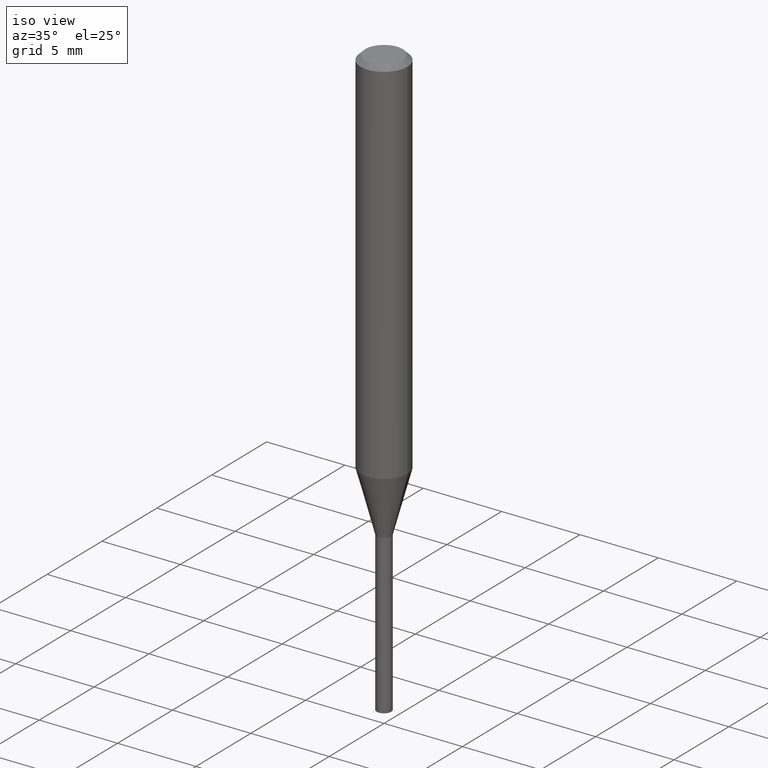
[diagram: clean part render]
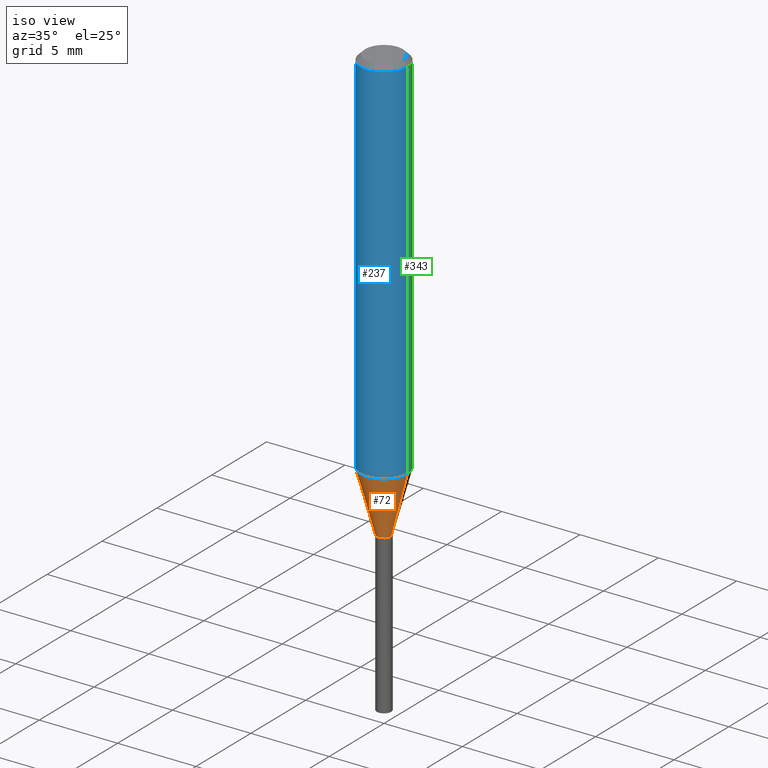
[diagram: same view with three faces highlighted in distinct colors, each labeled with its STEP entity id]
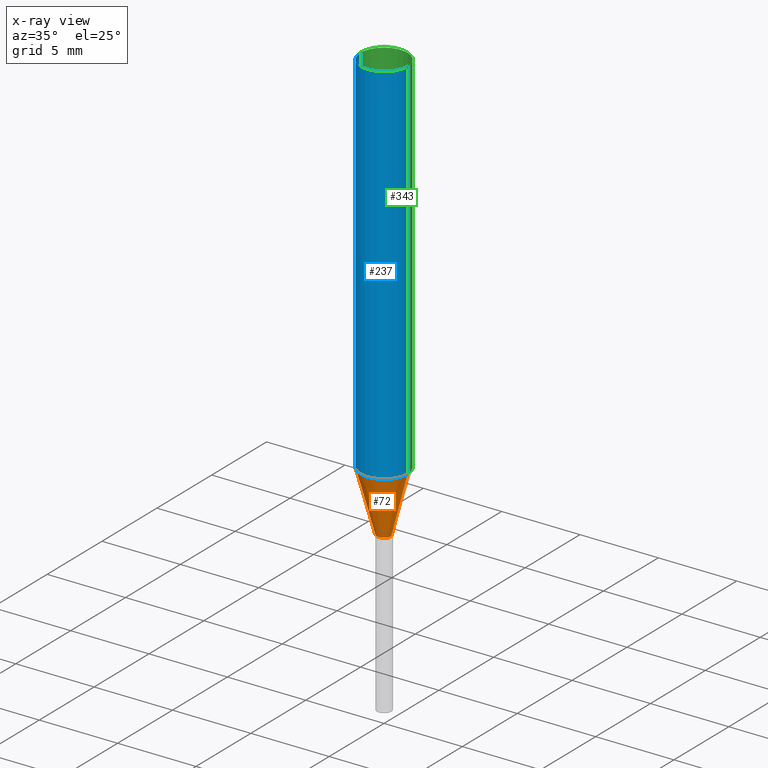
[diagram: x-ray of the same camera — body ghosted, the three highlighted faces saturated]
A machine part, iso view with three faces highlighted in distinct colors.
The next image is the same camera in x-ray (body ghosted, the three faces saturated) — at least one of them is partly hidden behind the body in this view.
Their STEP definitions:

[orange] entity #72 — the highlighted conical surface has half-angle 15 deg.
#14 = CARTESIAN_POINT ( 'NONE',  ( 0.01810000000000000150, -3.928963950600190549E-15, -1.089099999999999957 ) ) ;
#32 = DIRECTION ( 'NONE',  ( 1.000000000000000000, -6.982962677686266711E-15, 0.000000000000000000 ) ) ;
#38 = DIRECTION ( 'NONE',  ( -2.445468806185136597E-29, 3.491481338843145583E-15, 1.000000000000000000 ) ) ;
#66 = EDGE_CURVE ( 'NONE', #254, #451, #227, .T. ) ;
#72 = ADVANCED_FACE ( 'NONE', ( #276 ), #236, .T. ) ;
#78 = DIRECTION ( 'NONE',  ( -2.445468806185136597E-29, 3.491481338843145583E-15, 1.000000000000000000 ) ) ;
#79 = CARTESIAN_POINT ( 'NONE',  ( 2.663360076816232005E-29, -3.802572326134069746E-15, -1.089099999999999957 ) ) ;
#105 = CARTESIAN_POINT ( 'NONE',  ( 2.289625240354564916E-29, -3.268978029661690375E-15, -0.9362725194300541842 ) ) ;
#108 = DIRECTION ( 'NONE',  ( 1.000000000000000000, -6.982962677686262766E-15, 0.000000000000000000 ) ) ;
#111 = DIRECTION ( 'NONE',  ( -0.2588190451025211281, 5.211531920934547886E-15, 0.9659258262890679791 ) ) ;
#117 = CARTESIAN_POINT ( 'NONE',  ( -0.01810000000000000150, -3.682518220241656550E-15, -1.089099999999999957 ) ) ;
#139 = CIRCLE ( 'NONE', #410, 0.01810000000000000150 ) ;
#148 = VERTEX_POINT ( 'NONE', #482 ) ;
#160 = CARTESIAN_POINT ( 'NONE',  ( -0.05905000000000011628, -2.849402544195350882E-15, -0.9362725194300541842 ) ) ;
#179 = DIRECTION ( 'NONE',  ( 1.000000000000000000, -6.982962677686262766E-15, 0.000000000000000000 ) ) ;
#185 = ORIENTED_EDGE ( 'NONE', *, *, #209, .T. ) ;
#199 = LINE ( 'NONE', #14, #318 ) ;
#209 = EDGE_CURVE ( 'NONE', #148, #451, #199, .T. ) ;
#221 = EDGE_LOOP ( 'NONE', ( #224, #425, #185, #429 ) ) ;
#224 = ORIENTED_EDGE ( 'NONE', *, *, #266, .F. ) ;
#227 = CIRCLE ( 'NONE', #476, 0.05905000000000011628 ) ;
#236 = CONICAL_SURFACE ( 'NONE', #297, 0.01810000000000000150, 0.2617993877991498519 ) ;
#238 = DIRECTION ( 'NONE',  ( -2.445468806185136597E-29, 3.491481338843145583E-15, 1.000000000000000000 ) ) ;
#254 = VERTEX_POINT ( 'NONE', #160 ) ;
#264 = LINE ( 'NONE', #347, #380 ) ;
#266 = EDGE_CURVE ( 'NONE', #299, #254, #264, .T. ) ;
#275 = CARTESIAN_POINT ( 'NONE',  ( 0.05905000000000011628, -3.681321975779065690E-15, -0.9362725194300541842 ) ) ;
#276 = FACE_OUTER_BOUND ( 'NONE', #221, .T. ) ;
#291 = EDGE_CURVE ( 'NONE', #299, #148, #139, .T. ) ;
#297 = AXIS2_PLACEMENT_3D ( 'NONE', #317, #238, #108 ) ;
#299 = VERTEX_POINT ( 'NONE', #117 ) ;
#317 = CARTESIAN_POINT ( 'NONE',  ( 2.663360076816232005E-29, -3.802572326134069746E-15, -1.089099999999999957 ) ) ;
#318 = VECTOR ( 'NONE', #437, 39.37007874015748854 ) ;
#347 = CARTESIAN_POINT ( 'NONE',  ( -0.01810000000000000150, -3.673964090961491577E-15, -1.089099999999999957 ) ) ;
#380 = VECTOR ( 'NONE', #111, 39.37007874015748854 ) ;
#410 = AXIS2_PLACEMENT_3D ( 'NONE', #79, #38, #179 ) ;
#425 = ORIENTED_EDGE ( 'NONE', *, *, #291, .T. ) ;
#429 = ORIENTED_EDGE ( 'NONE', *, *, #66, .F. ) ;
#437 = DIRECTION ( 'NONE',  ( 0.2588190451025211281, 1.565188264969622954E-15, 0.9659258262890679791 ) ) ;
#451 = VERTEX_POINT ( 'NONE', #275 ) ;
#476 = AXIS2_PLACEMENT_3D ( 'NONE', #105, #78, #32 ) ;
#482 = CARTESIAN_POINT ( 'NONE',  ( 0.01810000000000000150, -3.928963950600190549E-15, -1.089099999999999957 ) ) ;

[blue] entity #237 — the highlighted cylindrical surface (edge-blend (fillet) strip) has radius 1.4999 mm, axis along (-0, 0, 1).
#9 = AXIS2_PLACEMENT_3D ( 'NONE', #363, #371, #310 ) ;
#21 = LINE ( 'NONE', #191, #465 ) ;
#32 = DIRECTION ( 'NONE',  ( 1.000000000000000000, -6.982962677686266711E-15, 0.000000000000000000 ) ) ;
#45 = VERTEX_POINT ( 'NONE', #53 ) ;
#50 = AXIS2_PLACEMENT_3D ( 'NONE', #345, #338, #390 ) ;
#53 = CARTESIAN_POINT ( 'NONE',  ( 0.05904999999999999832, -4.535783407291118600E-16, -0.01181000000000006871 ) ) ;
#66 = EDGE_CURVE ( 'NONE', #254, #451, #227, .T. ) ;
#67 = LINE ( 'NONE', #173, #423 ) ;
#78 = DIRECTION ( 'NONE',  ( -2.445468806185136597E-29, 3.491481338843145583E-15, 1.000000000000000000 ) ) ;
#94 = CIRCLE ( 'NONE', #50, 0.05904999999999999832 ) ;
#105 = CARTESIAN_POINT ( 'NONE',  ( 2.289625240354564916E-29, -3.268978029661690375E-15, -0.9362725194300541842 ) ) ;
#160 = CARTESIAN_POINT ( 'NONE',  ( -0.05905000000000011628, -2.849402544195350882E-15, -0.9362725194300541842 ) ) ;
#163 = ORIENTED_EDGE ( 'NONE', *, *, #348, .F. ) ;
#173 = CARTESIAN_POINT ( 'NONE',  ( 0.05905000000000006077, -4.123439461173744764E-16, 2.879382386107503023E-30 ) ) ;
#191 = CARTESIAN_POINT ( 'NONE',  ( -0.05905000000000006077, 4.195754854663395916E-16, -2.904631170795524694E-30 ) ) ;
#215 = FACE_OUTER_BOUND ( 'NONE', #252, .T. ) ;
#216 = ORIENTED_EDGE ( 'NONE', *, *, #222, .F. ) ;
#222 = EDGE_CURVE ( 'NONE', #254, #305, #21, .T. ) ;
#227 = CIRCLE ( 'NONE', #476, 0.05905000000000011628 ) ;
#237 = ADVANCED_FACE ( 'NONE', ( #215 ), #242, .T. ) ;
#242 = CYLINDRICAL_SURFACE ( 'NONE', #9, 0.05905000000000006077 ) ;
#252 = EDGE_LOOP ( 'NONE', ( #216, #404, #441, #163 ) ) ;
#254 = VERTEX_POINT ( 'NONE', #160 ) ;
#275 = CARTESIAN_POINT ( 'NONE',  ( 0.05905000000000011628, -3.681321975779065690E-15, -0.9362725194300541842 ) ) ;
#305 = VERTEX_POINT ( 'NONE', #420 ) ;
#310 = DIRECTION ( 'NONE',  ( 1.000000000000000000, -6.982962677686266711E-15, 4.876176775795935793E-29 ) ) ;
#338 = DIRECTION ( 'NONE',  ( -2.445468806185136597E-29, 3.491481338843145583E-15, 1.000000000000000000 ) ) ;
#345 = CARTESIAN_POINT ( 'NONE',  ( 2.888098660104663328E-31, -4.123439461173779030E-17, -0.01181000000000006871 ) ) ;
#348 = EDGE_CURVE ( 'NONE', #305, #45, #94, .T. ) ;
#363 = CARTESIAN_POINT ( 'NONE',  ( 0.000000000000000000, 0.000000000000000000, 0.000000000000000000 ) ) ;
#371 = DIRECTION ( 'NONE',  ( -2.445468806185136597E-29, 3.491481338843145583E-15, 1.000000000000000000 ) ) ;
#390 = DIRECTION ( 'NONE',  ( 1.000000000000000000, -6.982962677686266711E-15, 0.000000000000000000 ) ) ;
#404 = ORIENTED_EDGE ( 'NONE', *, *, #66, .T. ) ;
#420 = CARTESIAN_POINT ( 'NONE',  ( -0.05904999999999999832, -1.235530726670373770E-15, -0.01181000000000006871 ) ) ;
#423 = VECTOR ( 'NONE', #444, 39.37007874015748143 ) ;
#431 = EDGE_CURVE ( 'NONE', #451, #45, #67, .T. ) ;
#441 = ORIENTED_EDGE ( 'NONE', *, *, #431, .T. ) ;
#444 = DIRECTION ( 'NONE',  ( -2.445468806185136877E-29, 3.491481338843145188E-15, 1.000000000000000000 ) ) ;
#451 = VERTEX_POINT ( 'NONE', #275 ) ;
#464 = DIRECTION ( 'NONE',  ( -2.445468806185136877E-29, 3.491481338843145188E-15, 1.000000000000000000 ) ) ;
#465 = VECTOR ( 'NONE', #464, 39.37007874015748143 ) ;
#476 = AXIS2_PLACEMENT_3D ( 'NONE', #105, #78, #32 ) ;

[green] entity #343 — the highlighted cylindrical surface (edge-blend (fillet) strip) has radius 1.4999 mm, axis along (-0, 0, 1).
#16 = EDGE_LOOP ( 'NONE', ( #146, #114, #415, #186 ) ) ;
#21 = LINE ( 'NONE', #191, #465 ) ;
#45 = VERTEX_POINT ( 'NONE', #53 ) ;
#53 = CARTESIAN_POINT ( 'NONE',  ( 0.05904999999999999832, -4.535783407291118600E-16, -0.01181000000000006871 ) ) ;
#59 = DIRECTION ( 'NONE',  ( 1.000000000000000000, -6.982962677686266711E-15, 4.876176775795935793E-29 ) ) ;
#67 = LINE ( 'NONE', #173, #423 ) ;
#114 = ORIENTED_EDGE ( 'NONE', *, *, #222, .T. ) ;
#146 = ORIENTED_EDGE ( 'NONE', *, *, #253, .T. ) ;
#157 = CARTESIAN_POINT ( 'NONE',  ( 2.289625240354564916E-29, -3.268978029661690375E-15, -0.9362725194300541842 ) ) ;
#158 = FACE_OUTER_BOUND ( 'NONE', #16, .T. ) ;
#160 = CARTESIAN_POINT ( 'NONE',  ( -0.05905000000000011628, -2.849402544195350882E-15, -0.9362725194300541842 ) ) ;
#162 = CARTESIAN_POINT ( 'NONE',  ( 0.000000000000000000, 0.000000000000000000, 0.000000000000000000 ) ) ;
#173 = CARTESIAN_POINT ( 'NONE',  ( 0.05905000000000006077, -4.123439461173744764E-16, 2.879382386107503023E-30 ) ) ;
#186 = ORIENTED_EDGE ( 'NONE', *, *, #431, .F. ) ;
#189 = CIRCLE ( 'NONE', #477, 0.05905000000000011628 ) ;
#191 = CARTESIAN_POINT ( 'NONE',  ( -0.05905000000000006077, 4.195754854663395916E-16, -2.904631170795524694E-30 ) ) ;
#200 = CARTESIAN_POINT ( 'NONE',  ( 2.888098660104663328E-31, -4.123439461173779030E-17, -0.01181000000000006871 ) ) ;
#207 = CIRCLE ( 'NONE', #249, 0.05904999999999999832 ) ;
#222 = EDGE_CURVE ( 'NONE', #254, #305, #21, .T. ) ;
#249 = AXIS2_PLACEMENT_3D ( 'NONE', #200, #262, #294 ) ;
#253 = EDGE_CURVE ( 'NONE', #451, #254, #189, .T. ) ;
#254 = VERTEX_POINT ( 'NONE', #160 ) ;
#262 = DIRECTION ( 'NONE',  ( -2.445468806185136597E-29, 3.491481338843145583E-15, 1.000000000000000000 ) ) ;
#273 = DIRECTION ( 'NONE',  ( -2.445468806185136597E-29, 3.491481338843145583E-15, 1.000000000000000000 ) ) ;
#275 = CARTESIAN_POINT ( 'NONE',  ( 0.05905000000000011628, -3.681321975779065690E-15, -0.9362725194300541842 ) ) ;
#294 = DIRECTION ( 'NONE',  ( 1.000000000000000000, -6.982962677686266711E-15, 0.000000000000000000 ) ) ;
#305 = VERTEX_POINT ( 'NONE', #420 ) ;
#326 = EDGE_CURVE ( 'NONE', #45, #305, #207, .T. ) ;
#343 = ADVANCED_FACE ( 'NONE', ( #158 ), #469, .T. ) ;
#415 = ORIENTED_EDGE ( 'NONE', *, *, #326, .F. ) ;
#420 = CARTESIAN_POINT ( 'NONE',  ( -0.05904999999999999832, -1.235530726670373770E-15, -0.01181000000000006871 ) ) ;
#423 = VECTOR ( 'NONE', #444, 39.37007874015748143 ) ;
#431 = EDGE_CURVE ( 'NONE', #451, #45, #67, .T. ) ;
#433 = AXIS2_PLACEMENT_3D ( 'NONE', #162, #470, #59 ) ;
#444 = DIRECTION ( 'NONE',  ( -2.445468806185136877E-29, 3.491481338843145188E-15, 1.000000000000000000 ) ) ;
#451 = VERTEX_POINT ( 'NONE', #275 ) ;
#464 = DIRECTION ( 'NONE',  ( -2.445468806185136877E-29, 3.491481338843145188E-15, 1.000000000000000000 ) ) ;
#465 = VECTOR ( 'NONE', #464, 39.37007874015748143 ) ;
#469 = CYLINDRICAL_SURFACE ( 'NONE', #433, 0.05905000000000006077 ) ;
#470 = DIRECTION ( 'NONE',  ( -2.445468806185136597E-29, 3.491481338843145583E-15, 1.000000000000000000 ) ) ;
#477 = AXIS2_PLACEMENT_3D ( 'NONE', #157, #273, #481 ) ;
#481 = DIRECTION ( 'NONE',  ( 1.000000000000000000, -6.982962677686266711E-15, 0.000000000000000000 ) ) ;